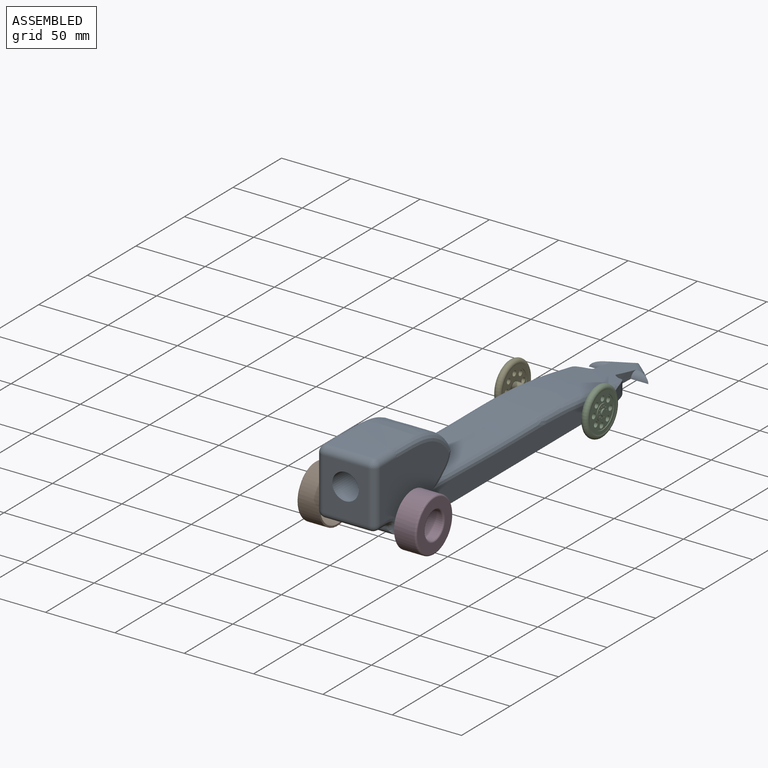
[diagram: assembled view]
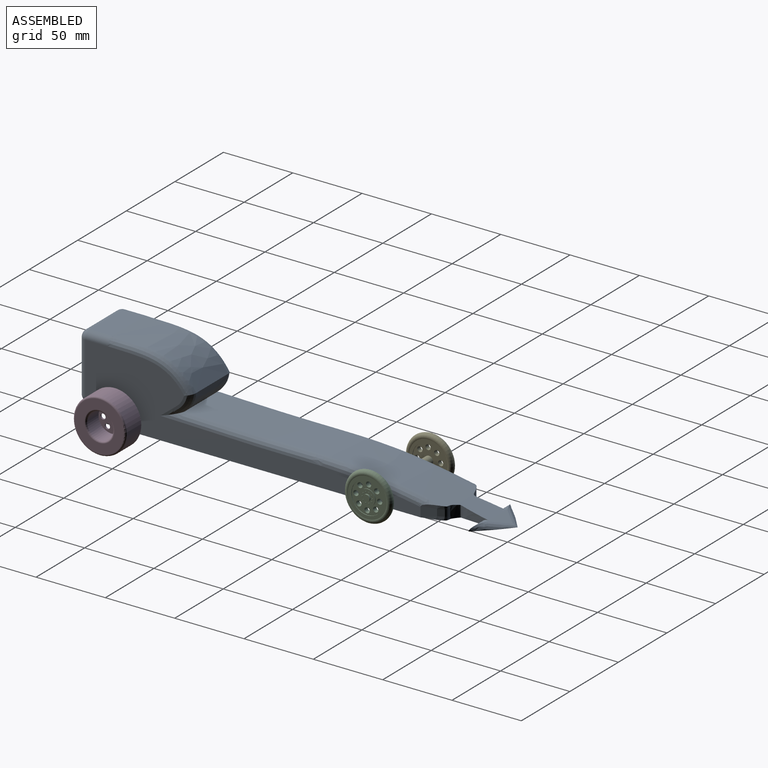
[diagram: assembled view, second angle]
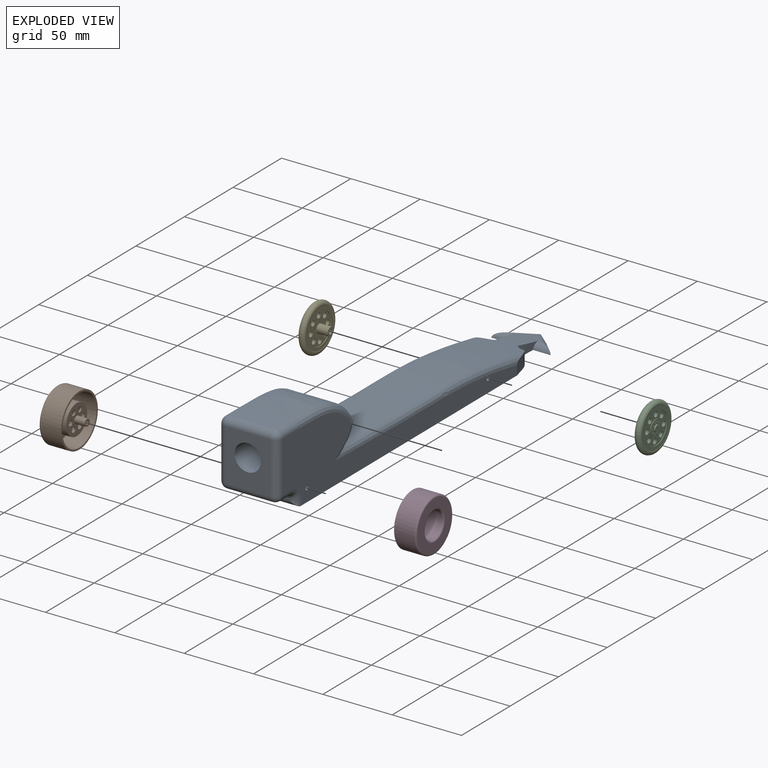
[diagram: exploded view]
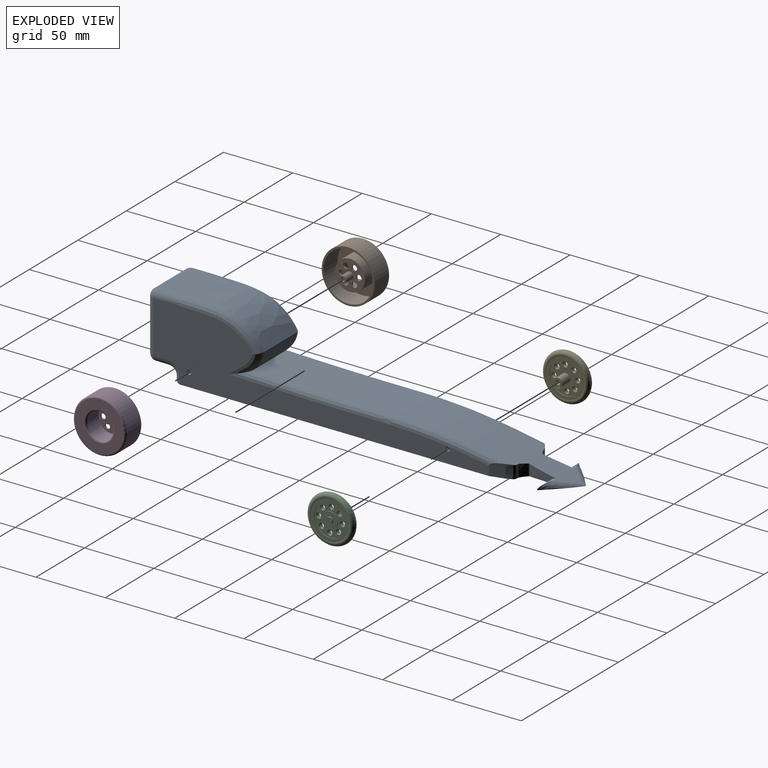
[diagram: exploded view, second angle]
ASSEMBLY  parts=5 mates=8
PART A: 43 faces, bbox 52.1x307.5x61.6 mm
  f0: plane 278.11x43.33mm, normal (0,0,-1), area 10937.1mm2, adj f1,f4,f14,f15,f16,f17,f26,f27
  f1: plane 241.72x51.15mm, normal (1,0,0), area 5359.2mm2, adj f0,f9,f10,f15,f22,f23,f24,f25
  f2: extruded ~225.08x32.7mm, area 6759.6mm2, adj f11,f15,f16,f21,f22,f26,f27,f28
  f3: plane 37.24x32.7mm, normal (0,-1,0), area 932.7mm2, adj f5,f30,f32,f34,f37
  f4: plane 241.72x51.16mm, normal (-1,0,0), area 5359.2mm2, adj f0,f9,f10,f16,f18,f19,f20,f21
  f5: cylinder r=9.53mm len=50.8mm, axis (0,-1,0), area 3040.2mm2, adj f3,f6
  f6: plane 19.05x19.05mm, normal (0,-1,0), area 285mm2, adj f5
  f7: plane 32.7x5.79mm, normal (0,0,-1), area 189.5mm2, adj f8,f36,f37,f41
  f8: extruded ~32.7x8.25mm, area 341.4mm2, adj f7,f38,f40,f42
  f9: cylinder r=1.59mm len=42.86mm, axis (1,0,0), area 427.5mm2, adj f1,f4
  f10: cylinder r=1.59mm len=42.86mm, axis (1,0,0), area 427.5mm2, adj f1,f4
  f11: extruded ~32.7x14.17mm, area 551.9mm2, adj f2,f12,f20,f23
  f12: extruded ~60.29x32.7mm, area 2210.7mm2, adj f11,f13,f19,f24
  f13: plane 32.7x16.15mm, normal (0,0,1), area 528.1mm2, adj f12,f18,f25,f32
  f14: plane 2.84x2.6mm, normal (0.74,0.68,0), area 1.1mm2, adj f0,f28,f29
  f15: extruded ~40.6x13.39mm, area 344.7mm2, adj f0,f1,f2,f22,f29
  f16: extruded ~40.6x14.27mm, area 337.6mm2, adj f0,f2,f4,f21,f26
  f17: plane 2.84x2.6mm, normal (-0.74,0.68,0), area 1.1mm2, adj f0,f26,f27
  f18: cylinder r=5.08mm len=16.15mm, axis (0,1,0), area 128.6mm2, adj f4,f13,f19,f31
  f19: bspline ~62.2x24.31mm, area 517mm2, adj f4,f12,f18,f20
  f20: bspline ~30.17x29.71mm, area 171.5mm2, adj f4,f11,f19,f21
  f21: bspline ~218.51x18.25mm, area 1503mm2, adj f2,f4,f16,f20
  f22: bspline ~238.72x18.79mm, area 1506.6mm2, adj f1,f2,f15,f23
  f23: bspline ~27.92x27.85mm, area 171.4mm2, adj f1,f11,f22,f24
  f24: bspline ~62.2x24.31mm, area 517mm2, adj f1,f12,f23,f25
  f25: cylinder r=5.08mm len=16.15mm, axis (0,-1,0), area 128.6mm2, adj f1,f13,f24,f33
  f26: cylinder r=5.08mm len=12.7mm, axis (1,0,0), area 64.2mm2, adj f0,f2,f16,f17,f27
  f27: bspline ~32.86x31.15mm, area 108.1mm2, adj f0,f2,f17,f26,f28
  f28: bspline ~32.86x31.15mm, area 108.1mm2, adj f0,f2,f14,f27,f29
  f29: cylinder r=5.08mm len=12.7mm, axis (1,0,0), area 66.5mm2, adj f0,f2,f14,f15,f28
  f30: cylinder r=5.08mm len=37.24mm, axis (0,0,-1), area 297.1mm2, adj f3,f4,f31,f35
  f31: sphere r=5.08mm, area 40.5mm2, adj f18,f30,f32
  f32: cylinder r=5.08mm len=32.7mm, axis (1,0,0), area 261mm2, adj f3,f13,f31,f33
  f33: sphere r=5.08mm, area 40.5mm2, adj f25,f32,f34
  f34: cylinder r=5.08mm len=37.24mm, axis (0,0,1), area 297.1mm2, adj f1,f3,f33,f39
  f35: sphere r=5.08mm, area 40.5mm2, adj f30,f36,f37
  f36: cylinder r=5.08mm len=5.85mm, axis (0,-1,0), area 46.5mm2, adj f4,f7,f35,f38
  f37: cylinder r=5.08mm len=32.7mm, axis (1,0,0), area 261mm2, adj f3,f7,f35,f39
  f38: bspline ~15.24x14.06mm, area 122.8mm2, adj f4,f8,f36,f40
  f39: sphere r=5.08mm, area 40.5mm2, adj f34,f37,f41
  f40: cylinder r=5.08mm len=42.86mm, axis (1,0,0), area 298.3mm2, adj f0,f1,f4,f8,f38,f42
  f41: cylinder r=5.08mm len=5.85mm, axis (0,1,0), area 46.5mm2, adj f1,f7,f39,f42
  f42: bspline ~16.84x14.39mm, area 122.8mm2, adj f1,f8,f40,f41
PART B: 20 faces, bbox 41.2x41.2x21.6 mm
  f0: cylinder r=19.05mm len=38.1mm, axis (0,0,1), area 1748.1mm2, adj f2,f19
  f1: plane 35.56x35.56mm, normal (0,0,-1), area 627.1mm2, adj f18,f19
  f2: plane 38.1x38.1mm, normal (0,0,1), area 146.9mm2, adj f0,f5
  f3: cylinder r=9.53mm len=19.05mm, axis (0,0,-1), area 684.1mm2, adj f4,f18
  f4: plane 19.05x19.05mm, normal (0,0,-1), area 211.6mm2, adj f3,f9,f10,f11,f12,f13,f14,f17
  f5: cylinder r=17.78mm len=35.56mm, axis (0,0,1), area 1631.6mm2, adj f2,f6
  f6: plane 35.56x35.56mm, normal (0,0,1), area 627.1mm2, adj f5,f7
  f7: cylinder r=10.79mm len=21.59mm, axis (0,0,-1), area 861.4mm2, adj f6,f8
  f8: plane 21.59x21.59mm, normal (0,0,1), area 277.4mm2, adj f7,f9,f10,f11,f12,f13,f14,f15
  f9: cylinder r=1.91mm len=3.81mm, axis (0,0,-1), area 15.2mm2, adj f4,f8
  f10: cylinder r=1.91mm len=3.81mm, axis (0,0,-1), area 15.2mm2, adj f4,f8
  f11: cylinder r=1.91mm len=3.81mm, axis (0,0,-1), area 15.2mm2, adj f4,f8
  f12: cylinder r=1.91mm len=3.81mm, axis (0,0,-1), area 15.2mm2, adj f4,f8
  f13: cylinder r=1.91mm len=3.81mm, axis (0,0,-1), area 15.2mm2, adj f4,f8
  f14: cylinder r=1.91mm len=3.81mm, axis (0,0,-1), area 15.2mm2, adj f4,f8
  f15: cylinder r=2.54mm len=7.62mm, axis (0,0,-1), area 121.6mm2, adj f8,f16
  f16: plane 5.08x5.08mm, normal (0,0,1), area 15.2mm2, adj f15,f17
  f17: cylinder r=1.27mm len=8.89mm, axis (0,0,1), area 70.9mm2, adj f4,f16
  f18: torus R=10.79mm, axis (0,0,-1), area 125.2mm2, adj f1,f3
  f19: torus R=17.78mm, axis (0,0,-1), area 233mm2, adj f0,f1
PART C: 43 faces, bbox 43.9x22.9x43.9 mm
  f0: revolved ~34.31x34.31mm, area 855.2mm2, adj f16,f18
  f1: plane 23.03x23.03mm, normal (0,-1,0), area 296.9mm2, adj f6,f7,f8,f9,f10,f11,f12,f13
  f2: plane 11.33x11.33mm, normal (0,1,0), area 76.5mm2, adj f3,f5,f19,f21,f23,f25,f27,f29
  f3: cylinder r=2.4mm len=4.8mm, axis (0,-1,0), area 16.7mm2, adj f2,f4
  f4: plane 4.8x4.8mm, normal (0,1,0), area 18.1mm2, adj f3
  f5: cylinder r=5.66mm len=11.33mm, axis (0,-1,0), area 18.1mm2, adj f2,f14
  f6: cylinder r=1.88mm len=3.76mm, axis (0,-1,0), area 40.9mm2, adj f1,f14
  f7: cylinder r=1.88mm len=3.76mm, axis (0,-1,0), area 40.9mm2, adj f1,f14
  f8: cylinder r=1.88mm len=3.76mm, axis (0,-1,0), area 40.9mm2, adj f1,f14
  f9: cylinder r=1.88mm len=3.76mm, axis (0,-1,0), area 40.9mm2, adj f1,f14
  f10: cylinder r=1.88mm len=3.76mm, axis (0,-1,0), area 40.9mm2, adj f1,f14
  f11: cylinder r=1.88mm len=3.76mm, axis (0,-1,0), area 40.9mm2, adj f1,f14
  f12: cylinder r=1.88mm len=3.76mm, axis (0,-1,0), area 40.9mm2, adj f1,f14
  f13: cylinder r=1.88mm len=3.76mm, axis (0,-1,0), area 40.9mm2, adj f1,f14
  f14: plane 23.03x23.03mm, normal (0,1,0), area 226.8mm2, adj f5,f6,f7,f8,f9,f10,f11,f12
  f15: cylinder r=11.51mm len=23.03mm, axis (0,1,0), area 36.7mm2, adj f1,f16
  f16: plane 37.43x37.43mm, normal (0,-1,0), area 193.5mm2, adj f0,f15
  f17: cylinder r=11.51mm len=23.03mm, axis (0,1,0), area 36.7mm2, adj f14,f18
  f18: plane 37.43x37.43mm, normal (0,1,0), area 193.5mm2, adj f0,f17
  f19: cylinder r=0.44mm len=0.89mm, axis (0,-1,0), area 1.1mm2, adj f2,f20
  f20: plane 0.89x0.89mm, normal (0,1,0), area 0.6mm2, adj f19
  f21: cylinder r=0.44mm len=0.89mm, axis (0,-1,0), area 1.1mm2, adj f2,f22
  f22: plane 0.89x0.89mm, normal (0,1,0), area 0.6mm2, adj f21
  f23: cylinder r=0.44mm len=0.89mm, axis (0,-1,0), area 1.1mm2, adj f2,f24
  f24: plane 0.89x0.89mm, normal (0,1,0), area 0.6mm2, adj f23
  f25: cylinder r=0.44mm len=0.89mm, axis (0,-1,0), area 1.1mm2, adj f2,f26
  f26: plane 0.89x0.89mm, normal (0,1,0), area 0.6mm2, adj f25
  f27: cylinder r=0.44mm len=0.89mm, axis (0,-1,0), area 1.1mm2, adj f2,f28
  f28: plane 0.89x0.89mm, normal (0,1,0), area 0.6mm2, adj f27
  f29: cylinder r=0.44mm len=0.89mm, axis (0,-1,0), area 1.1mm2, adj f2,f30
  f30: plane 0.89x0.89mm, normal (0,1,0), area 0.6mm2, adj f29
  f31: cylinder r=0.44mm len=0.89mm, axis (0,-1,0), area 1.1mm2, adj f2,f32
  f32: plane 0.89x0.89mm, normal (0,1,0), area 0.6mm2, adj f31
  f33: cylinder r=0.44mm len=0.89mm, axis (0,-1,0), area 1.1mm2, adj f2,f34
  f34: plane 0.89x0.89mm, normal (0,1,0), area 0.6mm2, adj f33
  f35: cylinder r=0.44mm len=0.89mm, axis (0,-1,0), area 1.1mm2, adj f2,f36
  f36: plane 0.89x0.89mm, normal (0,1,0), area 0.6mm2, adj f35
  f37: cylinder r=0.44mm len=0.89mm, axis (0,-1,0), area 1.1mm2, adj f2,f38
  f38: plane 0.89x0.89mm, normal (0,1,0), area 0.6mm2, adj f37
  f39: cylinder r=3.12mm len=8.26mm, axis (0,1,0), area 162mm2, adj f1,f40
  f40: plane 6.25x6.25mm, normal (0,-1,0), area 21.7mm2, adj f39,f41
  f41: cylinder r=1.69mm len=10.13mm, axis (0,-1,0), area 107.6mm2, adj f40,f42
  f42: plane 3.38x3.38mm, normal (0,-1,0), area 9mm2, adj f41
PART D: same geometry as B
PART E: same geometry as C
PLACE A t=(4.98,61.38,-25.11)mm
PLACE B rot(axis=(0.71,0,0.71),180deg) t=(-30.1,-60.69,-15.58)mm
PLACE C rot(axis=(0.58,0.58,-0.58),120deg) t=(34.67,140.46,-62.5)mm
PLACE D rot(axis=(-0.71,0,0.71),180deg) t=(40.06,-60.69,-15.58)mm
PLACE E rot(axis=(0.58,-0.58,0.58),120deg) t=(-24.71,140.46,31.33)mm
MATE cylindrical C.f3 <-> A.f9  axis (1,0,0) through (26.41,125.95,-15.58)mm
MATE planar C.f3 <-> A.f9  axis (-1,0,0) through (26.41,125.95,-15.58)mm
MATE cylindrical B.f0 <-> A.f10  axis (1,0,0) through (-20.9,-60.69,-15.58)mm
MATE planar D.f0 <-> A.f10  axis (1,0,0) through (26.41,-60.69,-15.58)mm
MATE cylindrical E.f3 <-> A.f9  axis (1,0,0) through (-21.52,125.95,-15.58)mm
MATE planar E.f3 <-> A.f9  axis (1,0,0) through (-16.45,125.95,-15.58)mm
MATE cylindrical D.f0 <-> A.f10  axis (-1,0,0) through (30.86,-60.69,-15.58)mm
MATE planar B.f0 <-> A.f10  axis (1,0,0) through (-16.45,-60.69,-15.58)mm
